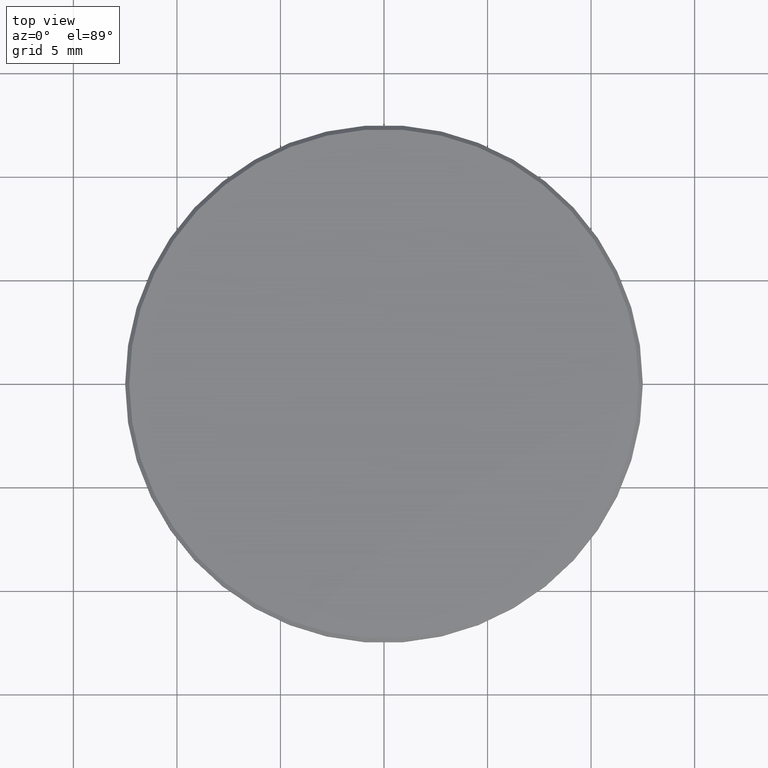
[diagram: clean part render]
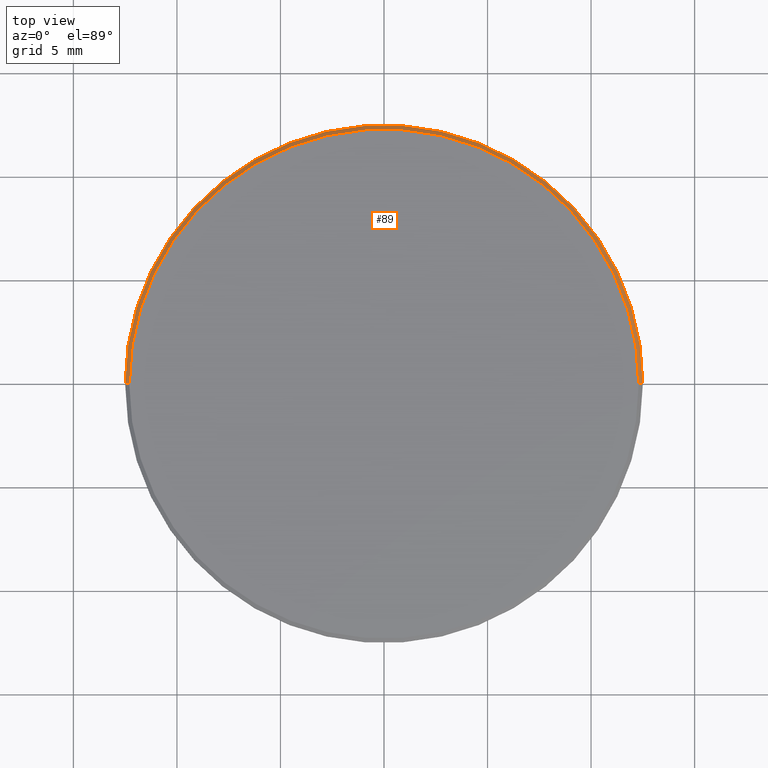
[diagram: same view with one face highlighted and labeled with its STEP entity id]
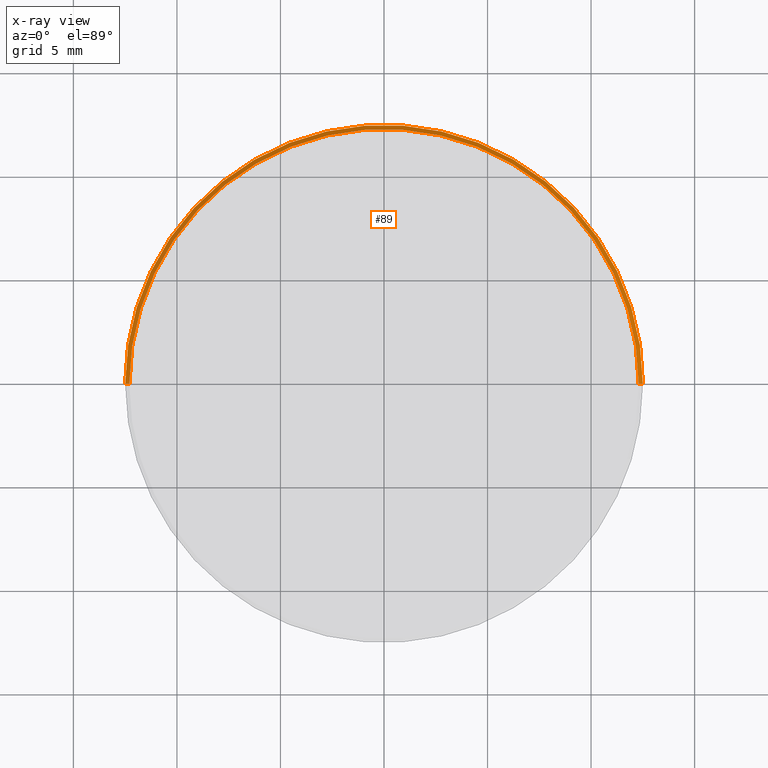
[diagram: x-ray of the same camera — body ghosted, the highlighted face saturated]
A machine part, top view. The second image highlights one B-rep face of the part: STEP entity #89.
The next image is the same camera in x-ray: the body ghosted, the highlighted face saturated — about 0% of this face is hidden behind the body in this view.
In plain terms, the highlighted conical surface has half-angle 45 deg.
Its self-contained STEP definition (entity closure, byte-faithful):
#7 = LINE ( 'NONE', #118, #162 ) ;
#9 = ORIENTED_EDGE ( 'NONE', *, *, #62, .F. ) ;
#21 = CARTESIAN_POINT ( 'NONE',  ( 0.000000000000000000, 0.000000000000000000, 0.8000000000000029310 ) ) ;
#28 = VERTEX_POINT ( 'NONE', #84 ) ;
#31 = VERTEX_POINT ( 'NONE', #237 ) ;
#37 = CIRCLE ( 'NONE', #66, 12.29999999999999893 ) ;
#40 = CARTESIAN_POINT ( 'NONE',  ( -12.29999999999999893, 0.000000000000000000, 1.000000000000000000 ) ) ;
#44 = CIRCLE ( 'NONE', #215, 12.50000000000000000 ) ;
#45 = DIRECTION ( 'NONE',  ( 0.7071067811865566766, 8.659560562355045024E-17, -0.7071067811865383579 ) ) ;
#62 = EDGE_CURVE ( 'NONE', #177, #31, #73, .T. ) ;
#66 = AXIS2_PLACEMENT_3D ( 'NONE', #205, #169, #128 ) ;
#71 = ORIENTED_EDGE ( 'NONE', *, *, #139, .F. ) ;
#72 = DIRECTION ( 'NONE',  ( 0.000000000000000000, 0.000000000000000000, -1.000000000000000000 ) ) ;
#73 = LINE ( 'NONE', #235, #188 ) ;
#81 = AXIS2_PLACEMENT_3D ( 'NONE', #158, #72, #144 ) ;
#84 = CARTESIAN_POINT ( 'NONE',  ( 12.50000000000000000, 1.530808498934191521E-15, 0.8000000000000029310 ) ) ;
#89 = ADVANCED_FACE ( 'NONE', ( #159 ), #148, .T. ) ;
#118 = CARTESIAN_POINT ( 'NONE',  ( 12.29999999999999893, 1.506315562951244216E-15, 1.000000000000000000 ) ) ;
#128 = DIRECTION ( 'NONE',  ( 1.000000000000000000, 0.000000000000000000, 0.000000000000000000 ) ) ;
#129 = CARTESIAN_POINT ( 'NONE',  ( 12.29999999999999893, 1.518562030942717967E-15, 1.000000000000000000 ) ) ;
#137 = VERTEX_POINT ( 'NONE', #129 ) ;
#139 = EDGE_CURVE ( 'NONE', #137, #177, #37, .T. ) ;
#144 = DIRECTION ( 'NONE',  ( -1.000000000000000000, 0.000000000000000000, 0.000000000000000000 ) ) ;
#148 = CONICAL_SURFACE ( 'NONE', #81, 12.29999999999999893, 0.7853981633974612686 ) ;
#158 = CARTESIAN_POINT ( 'NONE',  ( 0.000000000000000000, 0.000000000000000000, 1.000000000000000000 ) ) ;
#159 = FACE_OUTER_BOUND ( 'NONE', #173, .T. ) ;
#162 = VECTOR ( 'NONE', #45, 1000.000000000000000 ) ;
#163 = DIRECTION ( 'NONE',  ( 0.000000000000000000, 0.000000000000000000, -1.000000000000000000 ) ) ;
#169 = DIRECTION ( 'NONE',  ( 0.000000000000000000, 0.000000000000000000, 1.000000000000000000 ) ) ;
#173 = EDGE_LOOP ( 'NONE', ( #71, #218, #202, #9 ) ) ;
#177 = VERTEX_POINT ( 'NONE', #40 ) ;
#188 = VECTOR ( 'NONE', #234, 1000.000000000000000 ) ;
#202 = ORIENTED_EDGE ( 'NONE', *, *, #206, .F. ) ;
#204 = DIRECTION ( 'NONE',  ( 1.000000000000000000, 0.000000000000000000, 0.000000000000000000 ) ) ;
#205 = CARTESIAN_POINT ( 'NONE',  ( 0.000000000000000000, 0.000000000000000000, 1.000000000000000000 ) ) ;
#206 = EDGE_CURVE ( 'NONE', #31, #28, #44, .T. ) ;
#215 = AXIS2_PLACEMENT_3D ( 'NONE', #21, #163, #204 ) ;
#218 = ORIENTED_EDGE ( 'NONE', *, *, #229, .T. ) ;
#229 = EDGE_CURVE ( 'NONE', #137, #28, #7, .T. ) ;
#234 = DIRECTION ( 'NONE',  ( -0.7071067811865566766, 0.000000000000000000, -0.7071067811865383579 ) ) ;
#235 = CARTESIAN_POINT ( 'NONE',  ( -12.29999999999999893, 0.000000000000000000, 1.000000000000000000 ) ) ;
#237 = CARTESIAN_POINT ( 'NONE',  ( -12.50000000000000000, 0.000000000000000000, 0.8000000000000029310 ) ) ;